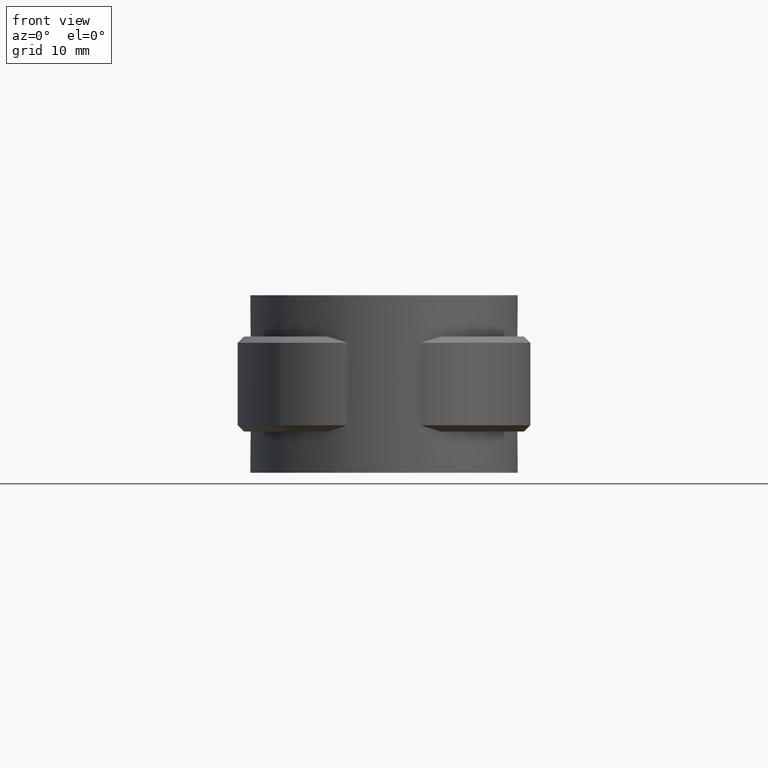
[diagram: clean part render]
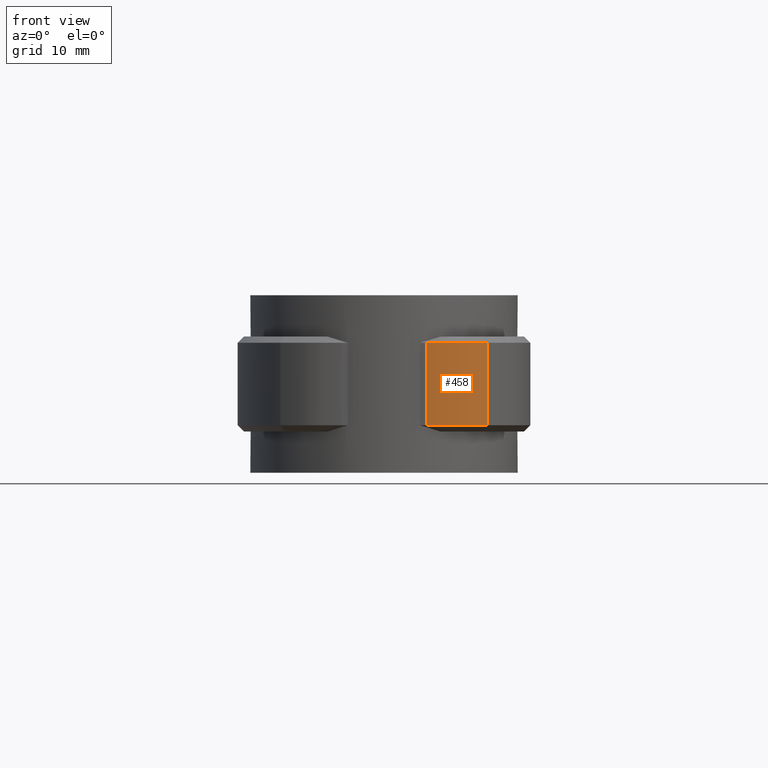
[diagram: same view with one face highlighted and labeled with its STEP entity id]
A machine part, front view. The second image highlights one B-rep face of the part: STEP entity #458.
In plain terms, the highlighted cylindrical surface (partial cylindrical patch) has radius 13.6 mm, axis along (0, 0, -1).
Its self-contained STEP definition (entity closure, byte-faithful):
#458 = ADVANCED_FACE( '', ( #892 ), #893, .T. );
#892 = FACE_OUTER_BOUND( '', #1985, .T. );
#893 = CYLINDRICAL_SURFACE( '', #1986, 13.6000000000000 );
#1985 = EDGE_LOOP( '', ( #4168, #4169, #4170, #4171 ) );
#1986 = AXIS2_PLACEMENT_3D( '', #4172, #4173, #4174 );
#4168 = ORIENTED_EDGE( '', *, *, #6451, .T. );
#4169 = ORIENTED_EDGE( '', *, *, #6404, .T. );
#4170 = ORIENTED_EDGE( '', *, *, #6453, .F. );
#4171 = ORIENTED_EDGE( '', *, *, #6445, .T. );
#4172 = CARTESIAN_POINT( '', ( 6.71795541813136, -6.71000000000001, -20.0000000000000 ) );
#4173 = DIRECTION( '', ( 0.000000000000000, 0.000000000000000, -1.00000000000000 ) );
#4174 = DIRECTION( '', ( 0.270259950661032, 0.962787390376867, 0.000000000000000 ) );
#6404 = EDGE_CURVE( '', #7528, #7525, #7529, .F. );
#6445 = EDGE_CURVE( '', #7592, #7596, #7598, .T. );
#6451 = EDGE_CURVE( '', #7596, #7528, #7604, .T. );
#6453 = EDGE_CURVE( '', #7592, #7525, #7606, .T. );
#7525 = VERTEX_POINT( '', #10682 );
#7528 = VERTEX_POINT( '', #10686 );
#7529 = CIRCLE( '', #10687, 13.6000000000000 );
#7592 = VERTEX_POINT( '', #10785 );
#7596 = VERTEX_POINT( '', #10791 );
#7598 = CIRCLE( '', #10794, 13.6000000000000 );
#7604 = LINE( '', #10801, #10802 );
#7606 = LINE( '', #10804, #10805 );
#10682 = CARTESIAN_POINT( '', ( 6.71795541813136, -20.3100000000000, -6.00000000000000 ) );
#10686 = CARTESIAN_POINT( '', ( 16.3403033577402, -16.3209531332280, -6.00000000000000 ) );
#10687 = AXIS2_PLACEMENT_3D( '', #12627, #12628, #12629 );
#10785 = CARTESIAN_POINT( '', ( 6.71795541813136, -20.3100000000000, -19.0000000000000 ) );
#10791 = CARTESIAN_POINT( '', ( 16.3403033577402, -16.3209531332280, -19.0000000000000 ) );
#10794 = AXIS2_PLACEMENT_3D( '', #12692, #12693, #12694 );
#10801 = CARTESIAN_POINT( '', ( 16.3403033577402, -16.3209531332280, -20.0000000000000 ) );
#10802 = VECTOR( '', #12708, 1000.00000000000 );
#10804 = CARTESIAN_POINT( '', ( 6.71795541813136, -20.3100000000000, -20.0000000000000 ) );
#10805 = VECTOR( '', #12712, 1000.00000000000 );
#12627 = CARTESIAN_POINT( '', ( 6.71795541813136, -6.71000000000001, -6.00000000000000 ) );
#12628 = DIRECTION( '', ( 0.000000000000000, 0.000000000000000, 1.00000000000000 ) );
#12629 = DIRECTION( '', ( 1.00000000000000, 0.000000000000000, 0.000000000000000 ) );
#12692 = CARTESIAN_POINT( '', ( 6.71795541813136, -6.71000000000001, -19.0000000000000 ) );
#12693 = DIRECTION( '', ( 0.000000000000000, 0.000000000000000, 1.00000000000000 ) );
#12694 = DIRECTION( '', ( 1.00000000000000, 0.000000000000000, 0.000000000000000 ) );
#12708 = DIRECTION( '', ( 0.000000000000000, 0.000000000000000, 1.00000000000000 ) );
#12712 = DIRECTION( '', ( 0.000000000000000, 0.000000000000000, 1.00000000000000 ) );